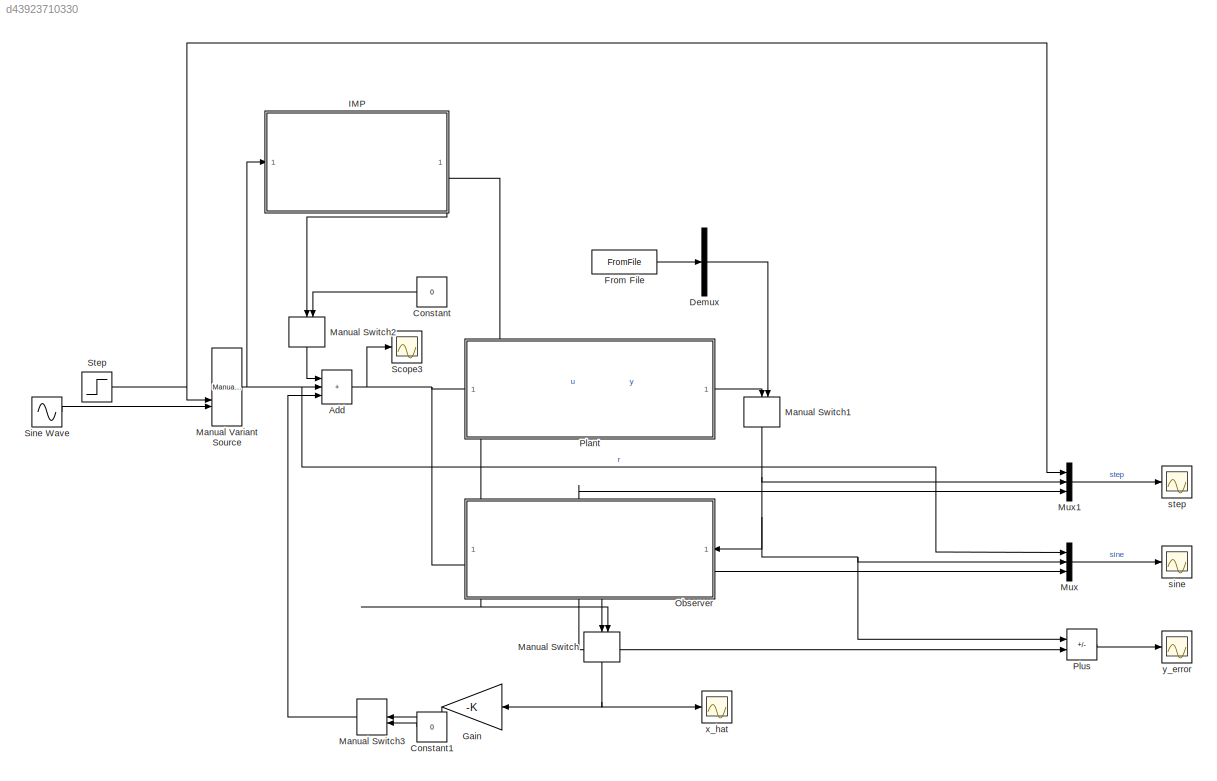
MODEL slx_d43923710330
KIND model
CONFIG AbsTol = auto
CONFIG EnableMultiTasking = off
CONFIG FixedStep = auto
CONFIG MaxStep = auto
CONFIG MinStep = auto
CONFIG RelTol = 1e-3
CONFIG SampleTimeConstraint = Unconstrained
CONFIG SolverName = VariableStepAuto
CONFIG StartTime = 0.0
CONFIG StopTime = 10
BLOCK [Sum] Add
  IconShape = rectangular
  Inputs = +++
BLOCK [Constant] Constant
  Value = 0
BLOCK [Constant] Constant1
  Value = 0
BLOCK [Demux] Demux
  Outputs = 5
BLOCK [FromFile] From File
  FileName = experiment.mat
  SampleTime = 0
BLOCK [Gain] Gain
  Gain = -K
  Multiplication = Matrix(K*u) (u vector)
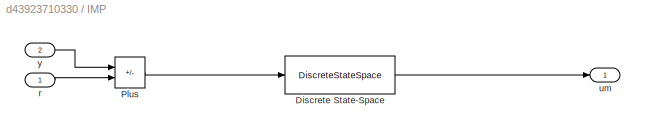
BLOCK [SubSystem] IMP
  PortSchema = {"entries":[{"content":{"sides":[{"content":{"connectorIds":["In1"]},"type":"ConnectorPlacement.EquallySpacedRectSide","uuid":"5d5e4b93-0997-4cc6-bb38-a0bc2c16a1b8"},{"content":{"connectorIds":["In2"],"side":"RIGHT"},"type":"ConnectorPlacement.EquallySpacedRectSide","uuid":"6a4a0bd4-0b0e-4fe8-aac6-62d10dbc348f"},{"content":{"side":"TOP"},"type":"ConnectorPlacement.EquallySpacedRectSide","uuid":"df...<+371ch>
BLOCK [DiscreteStateSpace] IMP/Discrete State-Space
  A = Ma
  B = Mb
  C = -Km
  D = 0
  SampleTime = -1
BLOCK [Sum] IMP/Plus
  IconShape = rectangular
  Inputs = +-
BLOCK [Inport] IMP/r
BLOCK [Outport] IMP/um
BLOCK [Inport] IMP/y
  Port = 2
BLOCK [ManualSwitch] Manual Switch
  NameLocation = left
BLOCK [ManualSwitch] Manual Switch1
  NameLocation = left
BLOCK [ManualSwitch] Manual Switch2
  CurrentSetting = 0
  NameLocation = left
BLOCK [ManualSwitch] Manual Switch3
  NameLocation = top
BLOCK [Reference] Manual Variant Source  REF=simulink/Signal
Routing/Manual
Variant Source
  SourceBlock = simulink/Signal\nRouting/Manual\nVariant Source
  SourceType = ManualVariantSource
BLOCK [Mux] Mux
  DisplayOption = bar
  Inputs = 3
BLOCK [Mux] Mux1
  DisplayOption = bar
  Inputs = 3
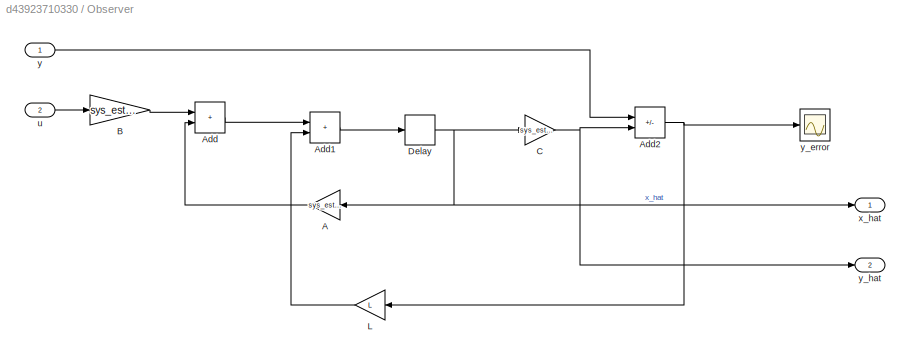
BLOCK [SubSystem] Observer
  PortSchema = {"entries":[{"content":{"sides":[{"content":{"connectorIds":["In1","Out2"]},"type":"ConnectorPlacement.EquallySpacedRectSide","uuid":"21983625-a237-4110-9725-a9924de32044"},{"content":{"connectorIds":["In2"],"side":"RIGHT"},"type":"ConnectorPlacement.EquallySpacedRectSide","uuid":"23fbd554-84a6-40c4-ba63-b021a939aeab"},{"content":{"side":"TOP"},"type":"ConnectorPlacement.EquallySpacedRectSide","uu...<+378ch>
BLOCK [Gain] Observer/A
  Gain = sys_est_ss.A
  Multiplication = Matrix(K*u) (u vector)
BLOCK [Sum] Observer/Add
  IconShape = rectangular
BLOCK [Sum] Observer/Add1
  IconShape = rectangular
BLOCK [Sum] Observer/Add2
  IconShape = rectangular
  Inputs = +-
BLOCK [Gain] Observer/B
  Gain = sys_est_ss.B
  Multiplication = Matrix(K*u) (u vector)
BLOCK [Gain] Observer/C
  Gain = sys_est_ss.C
  Multiplication = Matrix(K*u) (u vector)
BLOCK [Delay] Observer/Delay
  DelayLength = 1
  InitialCondition = 1
  InputPortMap = u0
BLOCK [Gain] Observer/L
  Gain = L
  Multiplication = Matrix(K*u) (u vector)
BLOCK [Inport] Observer/u
  Port = 2
BLOCK [Outport] Observer/x_hat
BLOCK [Inport] Observer/y
BLOCK [Scope] Observer/y_error
  Floating = off
  NumInputPorts = 1
  ScopeSpecificationString = Simulink.scopes.TimeScopeBlockCfg('CurrentConfiguration', extmgr.ConfigurationSet(extmgr.Configuration('Core','General UI',true),extmgr.Configuration('Core','Source UI',true),extmgr.Configuration('Sources','WiredSimulink',true),extmgr.Configuration('Visuals','Time Domain',true,'SerializedDisplays',{struct('MinYLimReal','-0.02875','MaxYLimReal','0.00859','YLabelReal','','MinYLimMag','0.00000','MaxY...<+1352ch>
BLOCK [Outport] Observer/y_hat
  Port = 2
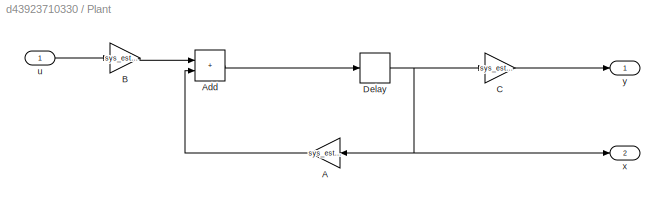
BLOCK [SubSystem] Plant
  PortSchema = {"entries":[{"content":{"sides":[{"content":{"connectorIds":["Out1","Out2"]},"type":"ConnectorPlacement.EquallySpacedRectSide","uuid":"21983625-a237-4110-9725-a9924de32044"},{"content":{"connectorIds":["In1"],"side":"RIGHT"},"type":"ConnectorPlacement.EquallySpacedRectSide","uuid":"23fbd554-84a6-40c4-ba63-b021a939aeab"},{"content":{"side":"TOP"},"type":"ConnectorPlacement.EquallySpacedRectSide","u...<+355ch>
BLOCK [Gain] Plant/A
  Gain = sys_est_ss.A
  Multiplication = Matrix(K*u) (u vector)
BLOCK [Sum] Plant/Add
  IconShape = rectangular
BLOCK [Gain] Plant/B
  Gain = sys_est_ss.B
  Multiplication = Matrix(K*u) (u vector)
BLOCK [Gain] Plant/C
  Gain = sys_est_ss.C
  Multiplication = Matrix(K*u) (u vector)
BLOCK [Delay] Plant/Delay
  DelayLength = 1
  InitialCondition = 0
  InputPortMap = u0
BLOCK [Inport] Plant/u
BLOCK [Outport] Plant/x
  Port = 2
BLOCK [Outport] Plant/y
BLOCK [Sum] Plus
  IconShape = rectangular
  Inputs = +-
BLOCK [Scope] Scope3
  Floating = off
  NumInputPorts = 1
  ScopeSpecificationString = Simulink.scopes.TimeScopeBlockCfg('CurrentConfiguration', extmgr.ConfigurationSet(extmgr.Configuration('Core','General UI',true),extmgr.Configuration('Core','Source UI',true),extmgr.Configuration('Sources','WiredSimulink',true,'DataLoggingVariableName','ScopeData2'),extmgr.Configuration('Visuals','Time Domain',true,'SerializedDisplays',{struct('MinYLimReal','-1.82614','MaxYLimReal','2.12156','YLab...<+1415ch>
BLOCK [Sin] Sine Wave
  Amplitude = 0.2
  Frequency = 400*2*pi
  SampleTime = Ts
BLOCK [Step] Step
  After = 0.2
  SampleTime = Ts
  Time = 0
BLOCK [Scope] sine
  Floating = off
  NumInputPorts = 1
  ScopeSpecificationString = Simulink.scopes.TimeScopeBlockCfg('CurrentConfiguration', extmgr.ConfigurationSet(extmgr.Configuration('Core','General UI',true),extmgr.Configuration('Core','Source UI',true),extmgr.Configuration('Sources','WiredSimulink',true,'DataLoggingVariableName','ScopeData2'),extmgr.Configuration('Visuals','Time Domain',true,'SerializedDisplays',{struct('MinYLimReal','-0.18265','MaxYLimReal','0.20028','YLab...<+1522ch>
BLOCK [Scope] step
  Floating = off
  NumInputPorts = 1
  ScopeSpecificationString = Simulink.scopes.TimeScopeBlockCfg('CurrentConfiguration', extmgr.ConfigurationSet(extmgr.Configuration('Core','General UI',true),extmgr.Configuration('Core','Source UI',true),extmgr.Configuration('Sources','WiredSimulink',true,'DataLoggingVariableName','ScopeData1'),extmgr.Configuration('Visuals','Time Domain',true,'SerializedDisplays',{struct('MinYLimReal','-0.02718','MaxYLimReal','0.22832','YLab...<+1523ch>
BLOCK [Scope] x_hat
  Floating = off
  NumInputPorts = 1
  ScopeSpecificationString = Simulink.scopes.TimeScopeBlockCfg('CurrentConfiguration', extmgr.ConfigurationSet(extmgr.Configuration('Core','General UI',true),extmgr.Configuration('Core','Source UI',true),extmgr.Configuration('Sources','WiredSimulink',true,'DataLoggingVariableName','ScopeData1'),extmgr.Configuration('Visuals','Time Domain',true,'SerializedDisplays',{struct('MinYLimReal','-8.9755','MaxYLimReal','8.96109','YLabe...<+1557ch>
BLOCK [Scope] y_error
  Floating = off
  NumInputPorts = 1
  ScopeSpecificationString = Simulink.scopes.TimeScopeBlockCfg('CurrentConfiguration', extmgr.ConfigurationSet(extmgr.Configuration('Core','General UI',true),extmgr.Configuration('Core','Source UI',true),extmgr.Configuration('Sources','WiredSimulink',true,'DataLoggingVariableName','ScopeData1'),extmgr.Configuration('Visuals','Time Domain',true,'SerializedDisplays',{struct('MinYLimReal','-0.19501','MaxYLimReal','0.5232','YLabe...<+1430ch>
NET Add:1 -> Observer:2, Plant:1, Scope3:1
LINE Constant1:1 -> Manual Switch3:2
LINE Constant:1 -> Manual Switch2:2
LINE Demux:3 -> Manual Switch1:2
LINE From File:1 -> Demux:1
LINE Gain:1 -> Manual Switch3:1
LINE IMP/Discrete State-Space:1 -> IMP/um:1
LINE IMP/Plus:1 -> IMP/Discrete State-Space:1
LINE IMP/r:1 -> IMP/Plus:2
LINE IMP/y:1 -> IMP/Plus:1
LINE IMP:1 -> Manual Switch2:1
NET Manual Switch1:1 -> Mux1:2, Mux:2, Observer:1, Plus:1
LINE Manual Switch2:1 -> Add:1
LINE Manual Switch3:1 -> Add:3
NET Manual Switch:1 -> Gain:1, x_hat:1
NET Manual Variant Source:1 -> Add:2, IMP:1, Mux:1
LINE Mux1:1 -> step:1
LINE Mux:1 -> sine:1
LINE Observer/A:1 -> Observer/Add:2
LINE Observer/Add1:1 -> Observer/Delay:1
NET Observer/Add2:1 -> Observer/L:1, Observer/y_error:1
LINE Observer/Add:1 -> Observer/Add1:1
LINE Observer/B:1 -> Observer/Add:1
NET Observer/C:1 -> Observer/Add2:2, Observer/y_hat:1
NET Observer/Delay:1 -> Observer/A:1, Observer/C:1, Observer/x_hat:1
LINE Observer/L:1 -> Observer/Add1:2
LINE Observer/u:1 -> Observer/B:1
LINE Observer/y:1 -> Observer/Add2:1
LINE Observer:1 -> Manual Switch:1
NET Observer:2 -> Mux1:3, Mux:3, Plus:2
LINE Plant/A:1 -> Plant/Add:2
LINE Plant/Add:1 -> Plant/Delay:1
LINE Plant/B:1 -> Plant/Add:1
LINE Plant/C:1 -> Plant/y:1
NET Plant/Delay:1 -> Plant/A:1, Plant/C:1, Plant/x:1
LINE Plant/u:1 -> Plant/B:1
NET Plant:1 -> IMP:2, Manual Switch1:1
LINE Plant:2 -> Manual Switch:2
LINE Plus:1 -> y_error:1
LINE Sine Wave:1 -> Manual Variant Source:3
NET Step:1 -> Manual Variant Source:2, Mux1:1
note: NET lines group one-source signal fan-out (src -> all destinations, sorted); 1:1 wires keep LINE
